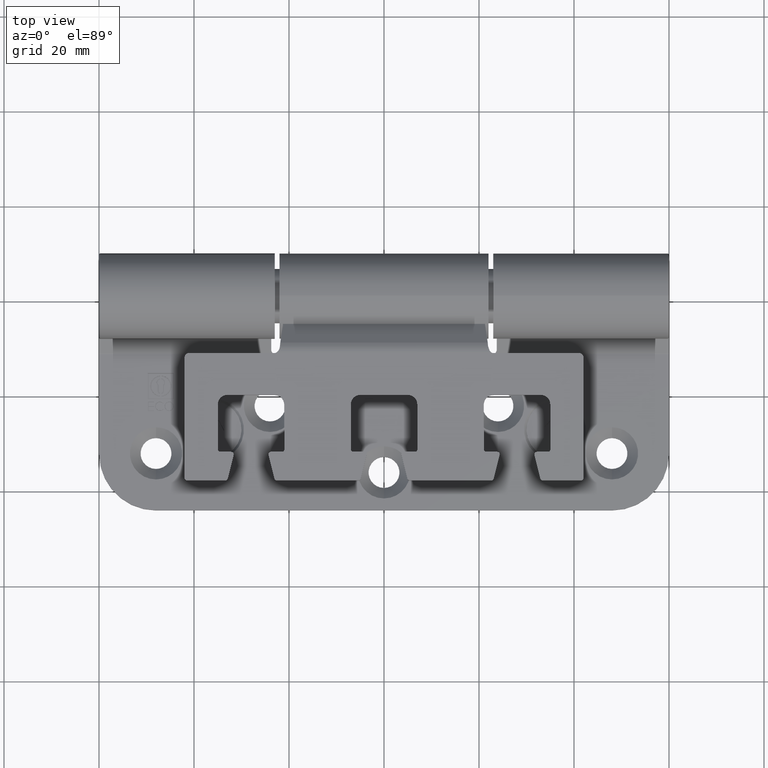
[diagram: clean part render]
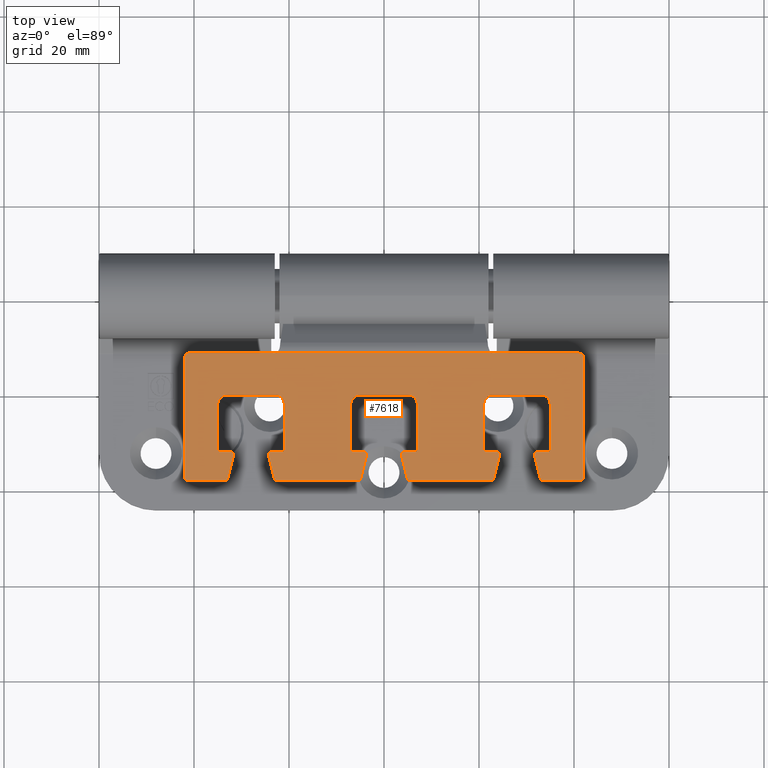
[diagram: same view with one face highlighted and labeled with its STEP entity id]
A machine part, top view. The second image highlights one B-rep face of the part: STEP entity #7618.
In plain terms, the highlighted planar face has unit normal (-0, 0, -1).
Its self-contained STEP definition (entity closure, byte-faithful):
#31 = EDGE_CURVE ( 'NONE', #11033, #685, #17393, .T. ) ;
#68 = VERTEX_POINT ( 'NONE', #16265 ) ;
#69 = VECTOR ( 'NONE', #8834, 1000.000000000000000 ) ;
#137 = AXIS2_PLACEMENT_3D ( 'NONE', #13610, #5369, #2589 ) ;
#197 = DIRECTION ( 'NONE',  ( 1.000000000000000000, 0.0000000000000000000, 1.026341648675405700E-048 ) ) ;
#222 = VERTEX_POINT ( 'NONE', #16482 ) ;
#299 = CARTESIAN_POINT ( 'NONE',  ( -33.49999999999999300, -10.99999999999999800, 32.14038820320222800 ) ) ;
#318 = CARTESIAN_POINT ( 'NONE',  ( -12.18030679136777500, -11.00000000000000200, -22.89199802843976900 ) ) ;
#364 = CARTESIAN_POINT ( 'NONE',  ( -38.99999999999993600, -11.00000000000000200, 21.00000000000000400 ) ) ;
#389 = VERTEX_POINT ( 'NONE', #2117 ) ;
#449 = DIRECTION ( 'NONE',  ( 0.0000000000000000000, 1.000000000000000000, 1.402666919856384600E-045 ) ) ;
#451 = CIRCLE ( 'NONE', #13173, 0.5000000000000004400 ) ;
#514 = EDGE_CURVE ( 'NONE', #11155, #8060, #1284, .T. ) ;
#575 = EDGE_CURVE ( 'NONE', #11556, #15273, #9215, .T. ) ;
#607 = VERTEX_POINT ( 'NONE', #2200 ) ;
#631 = ORIENTED_EDGE ( 'NONE', *, *, #16498, .T. ) ;
#669 = ORIENTED_EDGE ( 'NONE', *, *, #4151, .T. ) ;
#672 = ORIENTED_EDGE ( 'NONE', *, *, #15447, .T. ) ;
#676 = AXIS2_PLACEMENT_3D ( 'NONE', #14831, #16141, #17515 ) ;
#685 = VERTEX_POINT ( 'NONE', #1115 ) ;
#690 = CARTESIAN_POINT ( 'NONE',  ( -38.62126781251816300, -11.00000000000000200, 32.90531695312954200 ) ) ;
#731 = CIRCLE ( 'NONE', #11729, 0.5000000000000004400 ) ;
#748 = VERTEX_POINT ( 'NONE', #1055 ) ;
#792 = LINE ( 'NONE', #16885, #4840 ) ;
#797 = DIRECTION ( 'NONE',  ( 0.0000000000000000000, 0.0000000000000000000, 1.000000000000000000 ) ) ;
#841 = DIRECTION ( 'NONE',  ( 1.000000000000000000, 0.0000000000000000000, -6.938893903907232300E-016 ) ) ;
#843 = VERTEX_POINT ( 'NONE', #11394 ) ;
#852 = VERTEX_POINT ( 'NONE', #5742 ) ;
#859 = CARTESIAN_POINT ( 'NONE',  ( -38.50000000000000000, -11.00000000000000200, -22.60961179679778600 ) ) ;
#880 = DIRECTION ( 'NONE',  ( 0.0000000000000000000, 0.0000000000000000000, 1.000000000000000000 ) ) ;
#964 = CARTESIAN_POINT ( 'NONE',  ( -32.49999999999999300, -10.99999999999999800, 7.000000000000012400 ) ) ;
#989 = VERTEX_POINT ( 'NONE', #10793 ) ;
#1055 = CARTESIAN_POINT ( 'NONE',  ( -33.49999999999998600, -10.99999999999999800, 24.35961179679781800 ) ) ;
#1057 = DIRECTION ( 'NONE',  ( -0.0000000000000000000, -1.000000000000000000, -1.402666919856384600E-045 ) ) ;
#1090 = CARTESIAN_POINT ( 'NONE',  ( -32.99999999999999300, -11.00000000000000200, -32.14038820320217800 ) ) ;
#1092 = VERTEX_POINT ( 'NONE', #6815 ) ;
#1106 = ORIENTED_EDGE ( 'NONE', *, *, #3688, .T. ) ;
#1115 = CARTESIAN_POINT ( 'NONE',  ( -38.62126781251818400, -11.00000000000000200, -32.90531695312952100 ) ) ;
#1139 = CARTESIAN_POINT ( 'NONE',  ( -32.49999999999999300, -10.99999999999999800, -6.499999999999992000 ) ) ;
#1146 = VERTEX_POINT ( 'NONE', #15066 ) ;
#1151 = ORIENTED_EDGE ( 'NONE', *, *, #12716, .T. ) ;
#1167 = LINE ( 'NONE', #5592, #11238 ) ;
#1173 = DIRECTION ( 'NONE',  ( 0.0000000000000000000, 0.0000000000000000000, 1.000000000000000000 ) ) ;
#1209 = CIRCLE ( 'NONE', #10052, 1.999999999999994900 ) ;
#1284 = CIRCLE ( 'NONE', #3656, 0.5000000000000004400 ) ;
#1344 = ORIENTED_EDGE ( 'NONE', *, *, #2057, .T. ) ;
#1347 = DIRECTION ( 'NONE',  ( 0.0000000000000000000, 0.0000000000000000000, 1.000000000000000000 ) ) ;
#1350 = CARTESIAN_POINT ( 'NONE',  ( -32.49999999999999300, -10.99999999999999800, 34.50000000000000700 ) ) ;
#1354 = VERTEX_POINT ( 'NONE', #17010 ) ;
#1387 = AXIS2_PLACEMENT_3D ( 'NONE', #859, #13136, #797 ) ;
#1424 = CARTESIAN_POINT ( 'NONE',  ( -33.49999999999999300, -10.99999999999999800, -3.640388203202183700 ) ) ;
#1438 = EDGE_CURVE ( 'NONE', #3187, #989, #6748, .T. ) ;
#1455 = DIRECTION ( 'NONE',  ( 0.0000000000000000000, 0.0000000000000000000, 1.000000000000000000 ) ) ;
#1536 = ORIENTED_EDGE ( 'NONE', *, *, #12592, .T. ) ;
#1564 = DIRECTION ( 'NONE',  ( 0.0000000000000000000, 1.000000000000000000, 1.402666919856384600E-045 ) ) ;
#1617 = DIRECTION ( 'NONE',  ( 1.026341648675172500E-048, 1.401298464324817100E-045, 1.000000000000000000 ) ) ;
#1701 = DIRECTION ( 'NONE',  ( -1.387778780781444400E-014, 0.0000000000000000000, 1.000000000000000000 ) ) ;
#1708 = ORIENTED_EDGE ( 'NONE', *, *, #11572, .T. ) ;
#1768 = AXIS2_PLACEMENT_3D ( 'NONE', #16139, #13423, #17630 ) ;
#1867 = ORIENTED_EDGE ( 'NONE', *, *, #3585, .T. ) ;
#1875 = ORIENTED_EDGE ( 'NONE', *, *, #13863, .T. ) ;
#1895 = EDGE_CURVE ( 'NONE', #6896, #6159, #10819, .T. ) ;
#1921 = VECTOR ( 'NONE', #10686, 1000.000000000000000 ) ;
#1942 = ORIENTED_EDGE ( 'NONE', *, *, #16738, .T. ) ;
#1945 = EDGE_CURVE ( 'NONE', #5531, #17260, #16196, .T. ) ;
#1953 = CARTESIAN_POINT ( 'NONE',  ( -33.49999999999999300, -10.99999999999999800, -32.14038820320218500 ) ) ;
#1999 = AXIS2_PLACEMENT_3D ( 'NONE', #14830, #9522, #6642 ) ;
#2018 = VECTOR ( 'NONE', #13686, 1000.000000000000000 ) ;
#2057 = EDGE_CURVE ( 'NONE', #11675, #10034, #731, .T. ) ;
#2071 = VERTEX_POINT ( 'NONE', #16311 ) ;
#2117 = CARTESIAN_POINT ( 'NONE',  ( -12.18030679136776200, -11.00000000000000000, 22.89199802964732600 ) ) ;
#2141 = EDGE_CURVE ( 'NONE', #11938, #9015, #1167, .T. ) ;
#2200 = CARTESIAN_POINT ( 'NONE',  ( -39.00000000000000000, -11.00000000000000200, -5.390388203202159700 ) ) ;
#2223 = ORIENTED_EDGE ( 'NONE', *, *, #8683, .T. ) ;
#2248 = CIRCLE ( 'NONE', #5341, 1.999999999999994900 ) ;
#2259 = VERTEX_POINT ( 'NONE', #4453 ) ;
#2328 = CARTESIAN_POINT ( 'NONE',  ( -39.00000000000000000, -11.00000000000000200, -41.49999999999997200 ) ) ;
#2414 = VERTEX_POINT ( 'NONE', #15165 ) ;
#2464 = VERTEX_POINT ( 'NONE', #6797 ) ;
#2469 = DIRECTION ( 'NONE',  ( -1.026341648675172300E-048, -1.401298464324817400E-045, -1.000000000000000000 ) ) ;
#2479 = CIRCLE ( 'NONE', #14993, 0.5000000000000004400 ) ;
#2505 = VERTEX_POINT ( 'NONE', #17779 ) ;
#2527 = CARTESIAN_POINT ( 'NONE',  ( -22.99999999999998200, -11.00000000000000200, 33.00000000000001400 ) ) ;
#2551 = DIRECTION ( 'NONE',  ( -1.000000000000000000, 0.0000000000000000000, -6.938893903907228400E-016 ) ) ;
#2587 = EDGE_CURVE ( 'NONE', #14828, #852, #3304, .T. ) ;
#2589 = DIRECTION ( 'NONE',  ( 0.0000000000000000000, 0.0000000000000000000, 1.000000000000000000 ) ) ;
#2600 = EDGE_CURVE ( 'NONE', #8045, #16132, #16806, .T. ) ;
#2609 = DIRECTION ( 'NONE',  ( -1.026341648675172300E-048, -1.401298464324817400E-045, -1.000000000000000000 ) ) ;
#2638 = AXIS2_PLACEMENT_3D ( 'NONE', #12817, #10310, #11682 ) ;
#2702 = DIRECTION ( 'NONE',  ( -0.0000000000000000000, -1.000000000000000000, -1.402666919856384600E-045 ) ) ;
#2723 = CARTESIAN_POINT ( 'NONE',  ( -20.99999999999998600, -10.99999999999999800, 23.00000000000000700 ) ) ;
#2745 = CARTESIAN_POINT ( 'NONE',  ( -33.49999999999998600, -10.99999999999999800, 23.85961179679781800 ) ) ;
#2783 = CIRCLE ( 'NONE', #15982, 0.5000000000000004400 ) ;
#2786 = ORIENTED_EDGE ( 'NONE', *, *, #14829, .T. ) ;
#2823 = DIRECTION ( 'NONE',  ( 0.0000000000000000000, 0.0000000000000000000, 1.000000000000000000 ) ) ;
#2852 = CARTESIAN_POINT ( 'NONE',  ( -20.99999999999998900, -10.99999999999999800, 42.00000000000000000 ) ) ;
#2886 = VERTEX_POINT ( 'NONE', #10752 ) ;
#2943 = VERTEX_POINT ( 'NONE', #3964 ) ;
#2951 = ORIENTED_EDGE ( 'NONE', *, *, #12258, .T. ) ;
#2969 = CARTESIAN_POINT ( 'NONE',  ( -32.99999999999999300, -11.00000000000000200, 34.50000000000000000 ) ) ;
#3013 = VERTEX_POINT ( 'NONE', #8165 ) ;
#3044 = CARTESIAN_POINT ( 'NONE',  ( -33.62126781251817700, -10.99999999999999800, -3.655316953129518400 ) ) ;
#3059 = VECTOR ( 'NONE', #2551, 1000.000000000000000 ) ;
#3065 = CIRCLE ( 'NONE', #3868, 0.5000000000000004400 ) ;
#3087 = DIRECTION ( 'NONE',  ( 0.0000000000000000000, 0.0000000000000000000, 1.000000000000000000 ) ) ;
#3122 = ORIENTED_EDGE ( 'NONE', *, *, #13757, .T. ) ;
#3145 = EDGE_CURVE ( 'NONE', #17260, #11556, #12137, .T. ) ;
#3187 = VERTEX_POINT ( 'NONE', #4132 ) ;
#3250 = EDGE_CURVE ( 'NONE', #16669, #389, #8907, .T. ) ;
#3253 = DIRECTION ( 'NONE',  ( 0.0000000000000000000, 1.000000000000000000, 1.402666919856384600E-045 ) ) ;
#3269 = EDGE_CURVE ( 'NONE', #3013, #6666, #8274, .T. ) ;
#3296 = EDGE_CURVE ( 'NONE', #9015, #6263, #4599, .T. ) ;
#3304 = LINE ( 'NONE', #17053, #13829 ) ;
#3306 = ORIENTED_EDGE ( 'NONE', *, *, #2587, .T. ) ;
#3373 = ORIENTED_EDGE ( 'NONE', *, *, #3269, .T. ) ;
#3380 = CARTESIAN_POINT ( 'NONE',  ( -33.49999999999999300, -10.99999999999999800, -4.140388203202184600 ) ) ;
#3505 = CARTESIAN_POINT ( 'NONE',  ( -22.99999999999998600, -11.00000000000000200, -4.999999999999992900 ) ) ;
#3561 = AXIS2_PLACEMENT_3D ( 'NONE', #10899, #2702, #12276 ) ;
#3585 = EDGE_CURVE ( 'NONE', #2259, #11990, #17716, .T. ) ;
#3605 = EDGE_CURVE ( 'NONE', #6237, #1092, #17051, .T. ) ;
#3623 = CARTESIAN_POINT ( 'NONE',  ( -32.99999999999999300, -11.00000000000000200, -23.85961179679777500 ) ) ;
#3640 = LINE ( 'NONE', #10083, #9868 ) ;
#3656 = AXIS2_PLACEMENT_3D ( 'NONE', #8959, #6071, #15691 ) ;
#3688 = EDGE_CURVE ( 'NONE', #607, #222, #17279, .T. ) ;
#3868 = AXIS2_PLACEMENT_3D ( 'NONE', #8718, #9975, #6000 ) ;
#3964 = CARTESIAN_POINT ( 'NONE',  ( -13.18030679136777600, -11.00000000000000200, 42.00000000000000000 ) ) ;
#3993 = DIRECTION ( 'NONE',  ( 0.0000000000000000000, 1.000000000000000000, 1.402666919856384600E-045 ) ) ;
#4010 = DIRECTION ( 'NONE',  ( 0.0000000000000000000, 0.0000000000000000000, 1.000000000000000000 ) ) ;
#4016 = ORIENTED_EDGE ( 'NONE', *, *, #13015, .T. ) ;
#4031 = DIRECTION ( 'NONE',  ( 0.0000000000000000000, 0.0000000000000000000, 1.000000000000000000 ) ) ;
#4069 = CARTESIAN_POINT ( 'NONE',  ( -32.99999999999999300, -11.00000000000000200, 42.00000000000000000 ) ) ;
#4079 = AXIS2_PLACEMENT_3D ( 'NONE', #3505, #11728, #880 ) ;
#4132 = CARTESIAN_POINT ( 'NONE',  ( -33.62126781251817000, -10.99999999999999800, 24.34468304687048200 ) ) ;
#4151 = EDGE_CURVE ( 'NONE', #1146, #6896, #4566, .T. ) ;
#4162 = DIRECTION ( 'NONE',  ( 0.0000000000000000000, 0.0000000000000000000, 1.000000000000000000 ) ) ;
#4245 = DIRECTION ( 'NONE',  ( -1.026341648675172300E-048, -1.401298464324817400E-045, -1.000000000000000000 ) ) ;
#4402 = ORIENTED_EDGE ( 'NONE', *, *, #8576, .T. ) ;
#4453 = CARTESIAN_POINT ( 'NONE',  ( -13.18030679136777600, -11.00000000000000200, -42.00000000000000000 ) ) ;
#4469 = VECTOR ( 'NONE', #11664, 999.9999999999998900 ) ;
#4472 = DIRECTION ( 'NONE',  ( -0.0000000000000000000, -1.000000000000000000, -1.402666919856384600E-045 ) ) ;
#4527 = VECTOR ( 'NONE', #2609, 1000.000000000000000 ) ;
#4566 = CIRCLE ( 'NONE', #14877, 0.5000000000000004400 ) ;
#4599 = CIRCLE ( 'NONE', #6332, 0.5000000000000004400 ) ;
#4631 = EDGE_CURVE ( 'NONE', #6133, #11938, #10493, .T. ) ;
#4670 = AXIS2_PLACEMENT_3D ( 'NONE', #7440, #7559, #14252 ) ;
#4762 = LINE ( 'NONE', #17490, #16183 ) ;
#4840 = VECTOR ( 'NONE', #8671, 1000.000000000000000 ) ;
#4846 = ORIENTED_EDGE ( 'NONE', *, *, #1945, .T. ) ;
#4966 = DIRECTION ( 'NONE',  ( 1.026341648675172500E-048, 1.401298464324817100E-045, 1.000000000000000000 ) ) ;
#5083 = DIRECTION ( 'NONE',  ( 0.9701425001453322100, 0.0000000000000000000, -0.2425356250363319400 ) ) ;
#5132 = CARTESIAN_POINT ( 'NONE',  ( -39.00000000000000000, -11.00000000000000200, 42.00000000000000000 ) ) ;
#5203 = CARTESIAN_POINT ( 'NONE',  ( -21.35294117647066200, -10.99999999999999800, -28.58823529411765900 ) ) ;
#5205 = ORIENTED_EDGE ( 'NONE', *, *, #13879, .T. ) ;
#5224 = VECTOR ( 'NONE', #16042, 1000.000000000000000 ) ;
#5335 = EDGE_CURVE ( 'NONE', #8060, #10018, #11867, .T. ) ;
#5339 = CIRCLE ( 'NONE', #6407, 0.5000000000000004400 ) ;
#5341 = AXIS2_PLACEMENT_3D ( 'NONE', #14630, #7695, #17306 ) ;
#5369 = DIRECTION ( 'NONE',  ( -0.0000000000000000000, -1.000000000000000000, -1.402666919856384600E-045 ) ) ;
#5386 = AXIS2_PLACEMENT_3D ( 'NONE', #2527, #12089, #6636 ) ;
#5494 = CARTESIAN_POINT ( 'NONE',  ( -38.50000000000000000, -11.00000000000000200, 5.390388203202212100 ) ) ;
#5522 = LINE ( 'NONE', #9302, #1921 ) ;
#5531 = VERTEX_POINT ( 'NONE', #5737 ) ;
#5584 = CARTESIAN_POINT ( 'NONE',  ( -32.99999999999999300, -11.00000000000000200, 42.00000000000000000 ) ) ;
#5592 = CARTESIAN_POINT ( 'NONE',  ( -54.29411764705875500, -11.00000000000000200, 36.82352941176468200 ) ) ;
#5737 = CARTESIAN_POINT ( 'NONE',  ( -39.00000000000000000, -11.00000000000000200, 22.60961179679782900 ) ) ;
#5742 = CARTESIAN_POINT ( 'NONE',  ( -32.99999999999998600, -11.00000000000000200, 23.85961179679782500 ) ) ;
#5750 = ORIENTED_EDGE ( 'NONE', *, *, #3296, .T. ) ;
#5828 = LINE ( 'NONE', #15022, #3059 ) ;
#5898 = DIRECTION ( 'NONE',  ( -0.0000000000000000000, -1.000000000000000000, -1.402666919856384600E-045 ) ) ;
#5931 = ORIENTED_EDGE ( 'NONE', *, *, #9443, .T. ) ;
#6000 = DIRECTION ( 'NONE',  ( 0.0000000000000000000, 0.0000000000000000000, 1.000000000000000000 ) ) ;
#6010 = EDGE_CURVE ( 'NONE', #10139, #3013, #1209, .T. ) ;
#6056 = CARTESIAN_POINT ( 'NONE',  ( -38.50000000000000000, -11.00000000000000200, -41.50000000000000000 ) ) ;
#6071 = DIRECTION ( 'NONE',  ( 0.0000000000000000000, 1.000000000000000000, 1.402666919856384600E-045 ) ) ;
#6116 = CARTESIAN_POINT ( 'NONE',  ( -39.00000000000000000, -11.00000000000000200, 33.39038820320222800 ) ) ;
#6133 = VERTEX_POINT ( 'NONE', #6116 ) ;
#6159 = VERTEX_POINT ( 'NONE', #11811 ) ;
#6161 = CIRCLE ( 'NONE', #5386, 1.999999999999994900 ) ;
#6237 = VERTEX_POINT ( 'NONE', #14732 ) ;
#6261 = CIRCLE ( 'NONE', #2638, 0.5000000000000004400 ) ;
#6263 = VERTEX_POINT ( 'NONE', #14788 ) ;
#6272 = EDGE_CURVE ( 'NONE', #17702, #10139, #5522, .T. ) ;
#6295 = DIRECTION ( 'NONE',  ( -0.0000000000000000000, -1.000000000000000000, -1.402666919856384600E-045 ) ) ;
#6332 = AXIS2_PLACEMENT_3D ( 'NONE', #299, #4472, #1701 ) ;
#6391 = CARTESIAN_POINT ( 'NONE',  ( -38.50000000000000000, -11.00000000000000200, 22.60961179679782200 ) ) ;
#6407 = AXIS2_PLACEMENT_3D ( 'NONE', #16518, #8358, #4162 ) ;
#6433 = AXIS2_PLACEMENT_3D ( 'NONE', #2745, #6906, #1347 ) ;
#6624 = ORIENTED_EDGE ( 'NONE', *, *, #17545, .T. ) ;
#6635 = VECTOR ( 'NONE', #197, 1000.000000000000000 ) ;
#6636 = DIRECTION ( 'NONE',  ( 0.0000000000000000000, 0.0000000000000000000, 1.000000000000000000 ) ) ;
#6642 = DIRECTION ( 'NONE',  ( 0.0000000000000000000, 0.0000000000000000000, 1.000000000000000000 ) ) ;
#6666 = VERTEX_POINT ( 'NONE', #14824 ) ;
#6735 = CARTESIAN_POINT ( 'NONE',  ( -22.99999999999998600, -11.00000000000000200, 7.000000000000010700 ) ) ;
#6748 = LINE ( 'NONE', #11672, #10178 ) ;
#6750 = EDGE_LOOP ( 'NONE', ( #16895, #13511, #16587, #14756, #7978, #14455, #12188, #5750, #1942, #1151, #16467, #5205, #8322, #8292, #3373, #13952, #3306, #2786, #631, #13512, #13436, #4846, #13550, #14292, #10158, #2951, #2223, #7891, #4402, #7179, #15433, #1536, #1344, #13504, #14245, #8800, #672, #9122, #1106, #17499, #7309, #1708, #10641, #669, #14475, #11777, #8540, #11235, #8909, #10901, #10378, #3122, #4016, #7078, #1875, #6624, #14816, #5931, #1867, #13309, #9590 ) ) ;
#6797 = CARTESIAN_POINT ( 'NONE',  ( -33.62126781251815500, -10.99999999999999800, -24.34468304687045000 ) ) ;
#6802 = DIRECTION ( 'NONE',  ( -1.000000000000000000, 0.0000000000000000000, -6.938893903907228400E-016 ) ) ;
#6815 = CARTESIAN_POINT ( 'NONE',  ( -39.00000000000000000, -11.00000000000000200, 41.50000000000000000 ) ) ;
#6827 = CARTESIAN_POINT ( 'NONE',  ( -21.35294117647066200, -10.99999999999999800, -0.5882352941176567400 ) ) ;
#6865 = CIRCLE ( 'NONE', #676, 0.5000000000000004400 ) ;
#6896 = VERTEX_POINT ( 'NONE', #12558 ) ;
#6906 = DIRECTION ( 'NONE',  ( -0.0000000000000000000, -1.000000000000000000, -1.402666919856384600E-045 ) ) ;
#6932 = DIRECTION ( 'NONE',  ( 0.9701425001453322100, 0.0000000000000000000, -0.2425356250363319400 ) ) ;
#6942 = CARTESIAN_POINT ( 'NONE',  ( -32.50000000000000000, -10.99999999999999800, -34.99999999999999300 ) ) ;
#7001 = EDGE_CURVE ( 'NONE', #6159, #68, #2248, .T. ) ;
#7063 = VECTOR ( 'NONE', #15515, 1000.000000000000000 ) ;
#7073 = EDGE_CURVE ( 'NONE', #10021, #843, #10597, .T. ) ;
#7078 = ORIENTED_EDGE ( 'NONE', *, *, #31, .T. ) ;
#7113 = FACE_OUTER_BOUND ( 'NONE', #6750, .T. ) ;
#7179 = ORIENTED_EDGE ( 'NONE', *, *, #16612, .T. ) ;
#7309 = ORIENTED_EDGE ( 'NONE', *, *, #13301, .T. ) ;
#7393 = CARTESIAN_POINT ( 'NONE',  ( -32.50000000000000000, -10.99999999999999800, -21.49999999999998900 ) ) ;
#7410 = DIRECTION ( 'NONE',  ( -0.9701425001453322100, 3.944304526105058600E-031, -0.2425356250363319400 ) ) ;
#7440 = CARTESIAN_POINT ( 'NONE',  ( -13.18030679136777600, -11.00000000000000200, 41.00000000000000000 ) ) ;
#7534 = CARTESIAN_POINT ( 'NONE',  ( -33.49999999999999300, -10.99999999999999800, -32.14038820320218500 ) ) ;
#7559 = DIRECTION ( 'NONE',  ( -0.0000000000000000000, -1.000000000000000000, -1.402666919856384600E-045 ) ) ;
#7591 = VECTOR ( 'NONE', #841, 1000.000000000000000 ) ;
#7618 = ADVANCED_FACE ( 'NONE', ( #7113 ), #10632, .F. ) ;
#7692 = LINE ( 'NONE', #12441, #10927 ) ;
#7695 = DIRECTION ( 'NONE',  ( 0.0000000000000000000, 1.000000000000000000, 1.402666919856384600E-045 ) ) ;
#7733 = DIRECTION ( 'NONE',  ( -2.877826455228648000E-093, 1.000000000000000000, -1.401298464324817100E-045 ) ) ;
#7789 = LINE ( 'NONE', #17058, #69 ) ;
#7812 = CARTESIAN_POINT ( 'NONE',  ( -33.62126781251814800, -10.99999999999999800, 31.65531695312955000 ) ) ;
#7864 = DIRECTION ( 'NONE',  ( -1.026341648675172300E-048, -1.401298464324817400E-045, -1.000000000000000000 ) ) ;
#7891 = ORIENTED_EDGE ( 'NONE', *, *, #14645, .T. ) ;
#7978 = ORIENTED_EDGE ( 'NONE', *, *, #11989, .T. ) ;
#8001 = DIRECTION ( 'NONE',  ( 0.0000000000000000000, 1.000000000000000000, 1.402666919856384600E-045 ) ) ;
#8025 = LINE ( 'NONE', #13568, #5224 ) ;
#8036 = LINE ( 'NONE', #15004, #12740 ) ;
#8041 = DIRECTION ( 'NONE',  ( -0.9701425001453322100, 3.944304526105058600E-031, -0.2425356250363319400 ) ) ;
#8045 = VERTEX_POINT ( 'NONE', #13855 ) ;
#8059 = EDGE_CURVE ( 'NONE', #389, #16904, #15682, .T. ) ;
#8060 = VERTEX_POINT ( 'NONE', #13917 ) ;
#8165 = CARTESIAN_POINT ( 'NONE',  ( -22.99999999999998200, -11.00000000000000200, 21.00000000000001100 ) ) ;
#8235 = AXIS2_PLACEMENT_3D ( 'NONE', #13626, #1564, #2823 ) ;
#8274 = LINE ( 'NONE', #364, #9567 ) ;
#8292 = ORIENTED_EDGE ( 'NONE', *, *, #6010, .T. ) ;
#8322 = ORIENTED_EDGE ( 'NONE', *, *, #6272, .T. ) ;
#8358 = DIRECTION ( 'NONE',  ( 0.0000000000000000000, 1.000000000000000000, 1.402666919856384600E-045 ) ) ;
#8409 = CARTESIAN_POINT ( 'NONE',  ( -39.00000000000000000, -11.00000000000000200, 42.00000000000000000 ) ) ;
#8513 = CARTESIAN_POINT ( 'NONE',  ( -20.99999999999998200, -10.99999999999999800, 33.00000000000001400 ) ) ;
#8540 = ORIENTED_EDGE ( 'NONE', *, *, #8630, .T. ) ;
#8576 = EDGE_CURVE ( 'NONE', #16852, #2886, #14559, .T. ) ;
#8630 = EDGE_CURVE ( 'NONE', #68, #9808, #17457, .T. ) ;
#8671 = DIRECTION ( 'NONE',  ( 1.000000000000000000, 0.0000000000000000000, -6.938893903907232300E-016 ) ) ;
#8679 = VERTEX_POINT ( 'NONE', #2969 ) ;
#8683 = EDGE_CURVE ( 'NONE', #9742, #11500, #3065, .T. ) ;
#8718 = CARTESIAN_POINT ( 'NONE',  ( -32.50000000000000000, -10.99999999999999800, 6.500000000000011500 ) ) ;
#8777 = DIRECTION ( 'NONE',  ( 0.0000000000000000000, 0.0000000000000000000, 1.000000000000000000 ) ) ;
#8800 = ORIENTED_EDGE ( 'NONE', *, *, #17088, .T. ) ;
#8834 = DIRECTION ( 'NONE',  ( -1.026341648675172500E-048, -1.401298464324817100E-045, -1.000000000000000000 ) ) ;
#8907 = LINE ( 'NONE', #14109, #12551 ) ;
#8909 = ORIENTED_EDGE ( 'NONE', *, *, #17543, .T. ) ;
#8959 = CARTESIAN_POINT ( 'NONE',  ( -32.49999999999999300, -10.99999999999999800, -34.49999999999999300 ) ) ;
#8997 = EDGE_CURVE ( 'NONE', #17452, #607, #451, .T. ) ;
#9015 = VERTEX_POINT ( 'NONE', #7812 ) ;
#9061 = DIRECTION ( 'NONE',  ( 0.0000000000000000000, 0.0000000000000000000, 1.000000000000000000 ) ) ;
#9122 = ORIENTED_EDGE ( 'NONE', *, *, #8997, .T. ) ;
#9130 = CARTESIAN_POINT ( 'NONE',  ( -38.62126781251817000, -11.00000000000000200, -4.905316953129514000 ) ) ;
#9215 = LINE ( 'NONE', #10168, #4469 ) ;
#9223 = VECTOR ( 'NONE', #7864, 1000.000000000000000 ) ;
#9242 = VECTOR ( 'NONE', #12505, 1000.000000000000000 ) ;
#9298 = CARTESIAN_POINT ( 'NONE',  ( -39.00000000000000000, -11.00000000000000200, 5.390388203202229000 ) ) ;
#9302 = CARTESIAN_POINT ( 'NONE',  ( -20.99999999999998200, -10.99999999999999800, 98.00000000000000000 ) ) ;
#9359 = DIRECTION ( 'NONE',  ( 0.0000000000000000000, 0.0000000000000000000, 1.000000000000000000 ) ) ;
#9380 = EDGE_CURVE ( 'NONE', #10082, #1354, #16407, .T. ) ;
#9393 = DIRECTION ( 'NONE',  ( 0.0000000000000000000, 0.0000000000000000000, 1.000000000000000000 ) ) ;
#9421 = CARTESIAN_POINT ( 'NONE',  ( -38.62126781251817000, -11.00000000000000200, 4.905316953129546000 ) ) ;
#9439 = AXIS2_PLACEMENT_3D ( 'NONE', #7534, #15594, #17019 ) ;
#9443 = EDGE_CURVE ( 'NONE', #10834, #2259, #8025, .T. ) ;
#9509 = CARTESIAN_POINT ( 'NONE',  ( -22.99999999999998600, -11.00000000000000200, 5.000000000000016000 ) ) ;
#9522 = DIRECTION ( 'NONE',  ( -0.0000000000000000000, -1.000000000000000000, -1.402666919856384600E-045 ) ) ;
#9567 = VECTOR ( 'NONE', #13877, 1000.000000000000000 ) ;
#9579 = DIRECTION ( 'NONE',  ( -1.026341648675172300E-048, -1.401298464324817400E-045, -1.000000000000000000 ) ) ;
#9590 = ORIENTED_EDGE ( 'NONE', *, *, #8059, .F. ) ;
#9624 = EDGE_CURVE ( 'NONE', #14764, #10834, #16428, .T. ) ;
#9654 = DIRECTION ( 'NONE',  ( -0.9701425001453322100, 3.944304526105058600E-031, -0.2425356250363319400 ) ) ;
#9669 = LINE ( 'NONE', #13778, #11164 ) ;
#9738 = AXIS2_PLACEMENT_3D ( 'NONE', #17403, #7733, #4966 ) ;
#9742 = VERTEX_POINT ( 'NONE', #13146 ) ;
#9787 = DIRECTION ( 'NONE',  ( -0.0000000000000000000, -1.000000000000000000, -1.402666919856384600E-045 ) ) ;
#9808 = VERTEX_POINT ( 'NONE', #10346 ) ;
#9868 = VECTOR ( 'NONE', #10026, 1000.000000000000000 ) ;
#9975 = DIRECTION ( 'NONE',  ( 0.0000000000000000000, 1.000000000000000000, 1.402666919856384600E-045 ) ) ;
#10018 = VERTEX_POINT ( 'NONE', #1090 ) ;
#10021 = VERTEX_POINT ( 'NONE', #13556 ) ;
#10026 = DIRECTION ( 'NONE',  ( 1.026341648675172500E-048, 1.401298464324817100E-045, 1.000000000000000000 ) ) ;
#10034 = VERTEX_POINT ( 'NONE', #14730 ) ;
#10052 = AXIS2_PLACEMENT_3D ( 'NONE', #11454, #3253, #11347 ) ;
#10082 = VERTEX_POINT ( 'NONE', #16092 ) ;
#10083 = CARTESIAN_POINT ( 'NONE',  ( -33.00000000000000000, -11.00000000000000200, 70.00000000000000000 ) ) ;
#10086 = CARTESIAN_POINT ( 'NONE',  ( -39.00000000000003600, -11.00000000000000200, 35.00000000000001400 ) ) ;
#10139 = VERTEX_POINT ( 'NONE', #2723 ) ;
#10154 = EDGE_CURVE ( 'NONE', #9808, #2071, #10922, .T. ) ;
#10158 = ORIENTED_EDGE ( 'NONE', *, *, #10444, .T. ) ;
#10168 = CARTESIAN_POINT ( 'NONE',  ( -54.29411764705876900, -11.00000000000000200, 8.823529411764676300 ) ) ;
#10178 = VECTOR ( 'NONE', #7410, 999.9999999999998900 ) ;
#10310 = DIRECTION ( 'NONE',  ( -0.0000000000000000000, -1.000000000000000000, -1.402666919856384600E-045 ) ) ;
#10346 = CARTESIAN_POINT ( 'NONE',  ( -20.99999999999999300, -10.99999999999999800, -32.99999999999999300 ) ) ;
#10378 = ORIENTED_EDGE ( 'NONE', *, *, #5335, .T. ) ;
#10444 = EDGE_CURVE ( 'NONE', #15273, #2414, #6261, .T. ) ;
#10493 = CIRCLE ( 'NONE', #17273, 0.5000000000000004400 ) ;
#10563 = CARTESIAN_POINT ( 'NONE',  ( -54.29411764705876200, -11.00000000000000200, -19.17647058823532200 ) ) ;
#10597 = CIRCLE ( 'NONE', #4079, 1.999999999999996700 ) ;
#10632 = PLANE ( 'NONE',  #9738 ) ;
#10641 = ORIENTED_EDGE ( 'NONE', *, *, #12682, .T. ) ;
#10686 = DIRECTION ( 'NONE',  ( -1.026341648675172500E-048, -1.401298464324817100E-045, -1.000000000000000000 ) ) ;
#10729 = CARTESIAN_POINT ( 'NONE',  ( -39.00000000000000000, -11.00000000000000200, -33.39038820320216400 ) ) ;
#10752 = CARTESIAN_POINT ( 'NONE',  ( -20.99999999999998600, -10.99999999999999800, 5.000000000000016000 ) ) ;
#10793 = CARTESIAN_POINT ( 'NONE',  ( -38.62126781251816300, -11.00000000000000200, 23.09468304687048600 ) ) ;
#10819 = LINE ( 'NONE', #13426, #7591 ) ;
#10834 = VERTEX_POINT ( 'NONE', #11008 ) ;
#10899 = CARTESIAN_POINT ( 'NONE',  ( -38.50000000000000000, -11.00000000000000200, -33.39038820320219300 ) ) ;
#10901 = ORIENTED_EDGE ( 'NONE', *, *, #514, .T. ) ;
#10922 = CIRCLE ( 'NONE', #8235, 1.999999999999994900 ) ;
#10927 = VECTOR ( 'NONE', #6802, 1000.000000000000000 ) ;
#11008 = CARTESIAN_POINT ( 'NONE',  ( -38.50000000000000000, -11.00000000000000200, -42.00000000000000000 ) ) ;
#11033 = VERTEX_POINT ( 'NONE', #13324 ) ;
#11155 = VERTEX_POINT ( 'NONE', #6942 ) ;
#11164 = VECTOR ( 'NONE', #1617, 1000.000000000000000 ) ;
#11235 = ORIENTED_EDGE ( 'NONE', *, *, #10154, .T. ) ;
#11238 = VECTOR ( 'NONE', #6932, 999.9999999999998900 ) ;
#11347 = DIRECTION ( 'NONE',  ( 0.0000000000000000000, 0.0000000000000000000, 1.000000000000000000 ) ) ;
#11357 = CIRCLE ( 'NONE', #15067, 0.5000000000000004400 ) ;
#11394 = CARTESIAN_POINT ( 'NONE',  ( -22.99999999999998600, -11.00000000000000200, -6.999999999999987600 ) ) ;
#11413 = DIRECTION ( 'NONE',  ( 0.0000000000000000000, 0.0000000000000000000, 1.000000000000000000 ) ) ;
#11415 = DIRECTION ( 'NONE',  ( -0.0000000000000000000, -1.000000000000000000, -1.402666919856384600E-045 ) ) ;
#11453 = VECTOR ( 'NONE', #16983, 1000.000000000000000 ) ;
#11454 = CARTESIAN_POINT ( 'NONE',  ( -22.99999999999998200, -11.00000000000000200, 23.00000000000000700 ) ) ;
#11475 = CARTESIAN_POINT ( 'NONE',  ( -12.18030679136777500, -11.00000000000000200, 41.00000000000000000 ) ) ;
#11500 = VERTEX_POINT ( 'NONE', #964 ) ;
#11524 = DIRECTION ( 'NONE',  ( -0.0000000000000000000, -1.000000000000000000, -1.402666919856384600E-045 ) ) ;
#11556 = VERTEX_POINT ( 'NONE', #9421 ) ;
#11572 = EDGE_CURVE ( 'NONE', #2464, #14800, #6865, .T. ) ;
#11664 = DIRECTION ( 'NONE',  ( 0.9701425001453322100, 0.0000000000000000000, -0.2425356250363319400 ) ) ;
#11672 = CARTESIAN_POINT ( 'NONE',  ( -21.35294117647065400, -10.99999999999999800, 27.41176470588234100 ) ) ;
#11675 = VERTEX_POINT ( 'NONE', #12337 ) ;
#11682 = DIRECTION ( 'NONE',  ( -1.387778780781444400E-014, 0.0000000000000000000, 1.000000000000000000 ) ) ;
#11728 = DIRECTION ( 'NONE',  ( 0.0000000000000000000, 1.000000000000000000, 1.402666919856384600E-045 ) ) ;
#11729 = AXIS2_PLACEMENT_3D ( 'NONE', #1139, #3993, #9359 ) ;
#11737 = VERTEX_POINT ( 'NONE', #3044 ) ;
#11777 = ORIENTED_EDGE ( 'NONE', *, *, #7001, .T. ) ;
#11803 = EDGE_CURVE ( 'NONE', #10034, #8045, #9669, .T. ) ;
#11811 = CARTESIAN_POINT ( 'NONE',  ( -22.99999999999998900, -11.00000000000000200, -20.99999999999998900 ) ) ;
#11867 = LINE ( 'NONE', #4069, #2018 ) ;
#11938 = VERTEX_POINT ( 'NONE', #690 ) ;
#11944 = CIRCLE ( 'NONE', #1387, 0.5000000000000004400 ) ;
#11948 = CARTESIAN_POINT ( 'NONE',  ( -12.18030679136777500, -11.00000000000000200, -40.99999999999997200 ) ) ;
#11989 = EDGE_CURVE ( 'NONE', #1092, #6133, #14613, .T. ) ;
#11990 = VERTEX_POINT ( 'NONE', #11948 ) ;
#12013 = CARTESIAN_POINT ( 'NONE',  ( -39.00000000000000000, -11.00000000000000200, 42.00000000000000000 ) ) ;
#12089 = DIRECTION ( 'NONE',  ( 0.0000000000000000000, 1.000000000000000000, 1.402666919856384600E-045 ) ) ;
#12137 = CIRCLE ( 'NONE', #14166, 0.5000000000000004400 ) ;
#12165 = DIRECTION ( 'NONE',  ( -0.0000000000000000000, -1.000000000000000000, -1.402666919856384600E-045 ) ) ;
#12188 = ORIENTED_EDGE ( 'NONE', *, *, #2141, .T. ) ;
#12200 = VERTEX_POINT ( 'NONE', #16862 ) ;
#12226 = LINE ( 'NONE', #5584, #7063 ) ;
#12250 = DIRECTION ( 'NONE',  ( -0.0000000000000000000, -1.000000000000000000, -1.402666919856384600E-045 ) ) ;
#12258 = EDGE_CURVE ( 'NONE', #2414, #9742, #3640, .T. ) ;
#12276 = DIRECTION ( 'NONE',  ( 0.0000000000000000000, 0.0000000000000000000, 1.000000000000000000 ) ) ;
#12318 = DIRECTION ( 'NONE',  ( 0.0000000000000000000, 1.000000000000000000, 1.402666919856384600E-045 ) ) ;
#12337 = CARTESIAN_POINT ( 'NONE',  ( -32.50000000000000000, -10.99999999999999800, -6.999999999999991100 ) ) ;
#12429 = DIRECTION ( 'NONE',  ( -1.026341648675172500E-048, -1.401298464324817100E-045, -1.000000000000000000 ) ) ;
#12441 = CARTESIAN_POINT ( 'NONE',  ( -38.99999999999995000, -11.00000000000000200, -6.999999999999995600 ) ) ;
#12505 = DIRECTION ( 'NONE',  ( -1.026341648675172300E-048, -1.401298464324817400E-045, -1.000000000000000000 ) ) ;
#12551 = VECTOR ( 'NONE', #4245, 1000.000000000000000 ) ;
#12558 = CARTESIAN_POINT ( 'NONE',  ( -32.50000000000000000, -10.99999999999999800, -20.99999999999998600 ) ) ;
#12563 = EDGE_CURVE ( 'NONE', #6666, #14828, #5339, .T. ) ;
#12592 = EDGE_CURVE ( 'NONE', #843, #11675, #7692, .T. ) ;
#12604 = CIRCLE ( 'NONE', #3561, 0.5000000000000004400 ) ;
#12610 = DIRECTION ( 'NONE',  ( 0.0000000000000000000, 0.0000000000000000000, 1.000000000000000000 ) ) ;
#12682 = EDGE_CURVE ( 'NONE', #14800, #1146, #12226, .T. ) ;
#12716 = EDGE_CURVE ( 'NONE', #8679, #10082, #11357, .T. ) ;
#12735 = DIRECTION ( 'NONE',  ( 1.026341648675172500E-048, 1.401298464324817100E-045, 1.000000000000000000 ) ) ;
#12740 = VECTOR ( 'NONE', #9579, 1000.000000000000000 ) ;
#12817 = CARTESIAN_POINT ( 'NONE',  ( -33.49999999999999300, -10.99999999999999800, 4.140388203202228100 ) ) ;
#12832 = LINE ( 'NONE', #10563, #15863 ) ;
#12900 = EDGE_CURVE ( 'NONE', #6237, #2943, #16105, .T. ) ;
#13015 = EDGE_CURVE ( 'NONE', #12200, #11033, #2783, .T. ) ;
#13136 = DIRECTION ( 'NONE',  ( -0.0000000000000000000, -1.000000000000000000, -1.402666919856384600E-045 ) ) ;
#13135 = CARTESIAN_POINT ( 'NONE',  ( -33.49999999999999300, -10.99999999999999800, -4.140388203202184600 ) ) ;
#13146 = CARTESIAN_POINT ( 'NONE',  ( -33.00000000000000000, -11.00000000000000200, 6.500000000000005300 ) ) ;
#13150 = CIRCLE ( 'NONE', #14016, 0.5000000000000004400 ) ;
#13173 = AXIS2_PLACEMENT_3D ( 'NONE', #16002, #1057, #1173 ) ;
#13301 = EDGE_CURVE ( 'NONE', #2505, #2464, #12832, .T. ) ;
#13309 = ORIENTED_EDGE ( 'NONE', *, *, #16078, .F. ) ;
#13324 = CARTESIAN_POINT ( 'NONE',  ( -33.62126781251817000, -10.99999999999999800, -31.65531695312951400 ) ) ;
#13375 = CARTESIAN_POINT ( 'NONE',  ( -33.62126781251815500, -10.99999999999999800, 3.655316953129549100 ) ) ;
#13394 = CIRCLE ( 'NONE', #1768, 0.5000000000000004400 ) ;
#13423 = DIRECTION ( 'NONE',  ( -0.0000000000000000000, -1.000000000000000000, -1.402666919856384600E-045 ) ) ;
#13426 = CARTESIAN_POINT ( 'NONE',  ( -39.00000000000005000, -11.00000000000000200, -20.99999999999998200 ) ) ;
#13436 = ORIENTED_EDGE ( 'NONE', *, *, #16385, .T. ) ;
#13504 = ORIENTED_EDGE ( 'NONE', *, *, #11803, .T. ) ;
#13511 = ORIENTED_EDGE ( 'NONE', *, *, #17033, .T. ) ;
#13512 = ORIENTED_EDGE ( 'NONE', *, *, #1438, .T. ) ;
#13550 = ORIENTED_EDGE ( 'NONE', *, *, #3145, .T. ) ;
#13556 = CARTESIAN_POINT ( 'NONE',  ( -20.99999999999998900, -10.99999999999999800, -4.999999999999992900 ) ) ;
#13568 = CARTESIAN_POINT ( 'NONE',  ( -39.00000000000000000, -11.00000000000000200, -42.00000000000000000 ) ) ;
#13610 = CARTESIAN_POINT ( 'NONE',  ( -13.18030679136777600, -11.00000000000000200, -41.00000000000000000 ) ) ;
#13626 = CARTESIAN_POINT ( 'NONE',  ( -22.99999999999998900, -11.00000000000000200, -32.99999999999999300 ) ) ;
#13686 = DIRECTION ( 'NONE',  ( 1.026341648675172500E-048, 1.401298464324817100E-045, 1.000000000000000000 ) ) ;
#13747 = CARTESIAN_POINT ( 'NONE',  ( -39.00000000000000000, -11.00000000000000200, 42.00000000000000000 ) ) ;
#13757 = EDGE_CURVE ( 'NONE', #10018, #12200, #14557, .T. ) ;
#13778 = CARTESIAN_POINT ( 'NONE',  ( -33.00000000000000000, -11.00000000000000200, 70.00000000000000000 ) ) ;
#13829 = VECTOR ( 'NONE', #12735, 1000.000000000000000 ) ;
#13855 = CARTESIAN_POINT ( 'NONE',  ( -32.99999999999999300, -11.00000000000000200, -4.140388203202186400 ) ) ;
#13861 = LINE ( 'NONE', #6827, #15156 ) ;
#13863 = EDGE_CURVE ( 'NONE', #685, #16470, #12604, .T. ) ;
#13877 = DIRECTION ( 'NONE',  ( -1.000000000000000000, 0.0000000000000000000, -6.938893903907228400E-016 ) ) ;
#13879 = EDGE_CURVE ( 'NONE', #1354, #17702, #6161, .T. ) ;
#13913 = DIRECTION ( 'NONE',  ( -1.026341648675172300E-048, -1.401298464324817400E-045, -1.000000000000000000 ) ) ;
#13917 = CARTESIAN_POINT ( 'NONE',  ( -32.99999999999999300, -11.00000000000000200, -34.49999999999999300 ) ) ;
#13952 = ORIENTED_EDGE ( 'NONE', *, *, #12563, .T. ) ;
#14016 = AXIS2_PLACEMENT_3D ( 'NONE', #13135, #6295, #9061 ) ;
#14089 = EDGE_CURVE ( 'NONE', #222, #2505, #11944, .T. ) ;
#14109 = CARTESIAN_POINT ( 'NONE',  ( -12.18030679136777500, -11.00000000000000200, 42.00000000000000000 ) ) ;
#14166 = AXIS2_PLACEMENT_3D ( 'NONE', #5494, #12250, #4010 ) ;
#14245 = ORIENTED_EDGE ( 'NONE', *, *, #2600, .T. ) ;
#14252 = DIRECTION ( 'NONE',  ( 0.0000000000000000000, 0.0000000000000000000, 1.000000000000000000 ) ) ;
#14292 = ORIENTED_EDGE ( 'NONE', *, *, #575, .T. ) ;
#14362 = AXIS2_PLACEMENT_3D ( 'NONE', #9509, #12318, #4031 ) ;
#14455 = ORIENTED_EDGE ( 'NONE', *, *, #4631, .T. ) ;
#14475 = ORIENTED_EDGE ( 'NONE', *, *, #1895, .T. ) ;
#14557 = CIRCLE ( 'NONE', #9439, 0.5000000000000004400 ) ;
#14559 = CIRCLE ( 'NONE', #14362, 1.999999999999996700 ) ;
#14613 = LINE ( 'NONE', #12013, #9223 ) ;
#14630 = CARTESIAN_POINT ( 'NONE',  ( -22.99999999999998900, -11.00000000000000200, -22.99999999999998600 ) ) ;
#14645 = EDGE_CURVE ( 'NONE', #11500, #16852, #792, .T. ) ;
#14730 = CARTESIAN_POINT ( 'NONE',  ( -32.99999999999999300, -11.00000000000000200, -6.499999999999992000 ) ) ;
#14732 = CARTESIAN_POINT ( 'NONE',  ( -38.50000000000000000, -11.00000000000000200, 42.00000000000000000 ) ) ;
#14756 = ORIENTED_EDGE ( 'NONE', *, *, #3605, .T. ) ;
#14764 = VERTEX_POINT ( 'NONE', #2328 ) ;
#14788 = CARTESIAN_POINT ( 'NONE',  ( -32.99999999999999300, -11.00000000000000200, 32.14038820320222800 ) ) ;
#14800 = VERTEX_POINT ( 'NONE', #3623 ) ;
#14816 = ORIENTED_EDGE ( 'NONE', *, *, #9624, .T. ) ;
#14824 = CARTESIAN_POINT ( 'NONE',  ( -32.49999999999998600, -10.99999999999999800, 21.00000000000000700 ) ) ;
#14828 = VERTEX_POINT ( 'NONE', #17609 ) ;
#14829 = EDGE_CURVE ( 'NONE', #852, #748, #17538, .T. ) ;
#14830 = CARTESIAN_POINT ( 'NONE',  ( -38.50000000000000000, -11.00000000000000200, 41.50000000000000000 ) ) ;
#14831 = CARTESIAN_POINT ( 'NONE',  ( -33.49999999999999300, -10.99999999999999800, -23.85961179679777500 ) ) ;
#14877 = AXIS2_PLACEMENT_3D ( 'NONE', #7393, #449, #3087 ) ;
#14993 = AXIS2_PLACEMENT_3D ( 'NONE', #6391, #12165, #17569 ) ;
#15004 = CARTESIAN_POINT ( 'NONE',  ( -12.18030679136777500, -11.00000000000000200, 42.00000000000000000 ) ) ;
#15022 = CARTESIAN_POINT ( 'NONE',  ( -38.99999999999994300, -11.00000000000000200, -34.99999999999999300 ) ) ;
#15054 = VECTOR ( 'NONE', #8041, 999.9999999999998900 ) ;
#15058 = CARTESIAN_POINT ( 'NONE',  ( -39.00000000000000000, -11.00000000000000200, 42.00000000000000000 ) ) ;
#15066 = CARTESIAN_POINT ( 'NONE',  ( -33.00000000000000000, -11.00000000000000200, -21.49999999999998600 ) ) ;
#15067 = AXIS2_PLACEMENT_3D ( 'NONE', #1350, #8001, #9393 ) ;
#15118 = CARTESIAN_POINT ( 'NONE',  ( -12.18030679136777500, -11.00000000000000200, 42.00000000000000000 ) ) ;
#15147 = CARTESIAN_POINT ( 'NONE',  ( -38.50000000000000000, -11.00000000000000200, 33.39038820320222100 ) ) ;
#15150 = VECTOR ( 'NONE', #13913, 1000.000000000000000 ) ;
#15156 = VECTOR ( 'NONE', #9654, 999.9999999999998900 ) ;
#15165 = CARTESIAN_POINT ( 'NONE',  ( -32.99999999999999300, -11.00000000000000200, 4.140388203202228100 ) ) ;
#15273 = VERTEX_POINT ( 'NONE', #13375 ) ;
#15433 = ORIENTED_EDGE ( 'NONE', *, *, #7073, .T. ) ;
#15447 = EDGE_CURVE ( 'NONE', #11737, #17452, #13861, .T. ) ;
#15511 = LINE ( 'NONE', #13747, #4527 ) ;
#15515 = DIRECTION ( 'NONE',  ( 1.026341648675172500E-048, 1.401298464324817100E-045, 1.000000000000000000 ) ) ;
#15594 = DIRECTION ( 'NONE',  ( -0.0000000000000000000, -1.000000000000000000, -1.402666919856384600E-045 ) ) ;
#15682 = LINE ( 'NONE', #15118, #9242 ) ;
#15691 = DIRECTION ( 'NONE',  ( 0.0000000000000000000, 0.0000000000000000000, 1.000000000000000000 ) ) ;
#15729 = CIRCLE ( 'NONE', #4670, 1.000000000000000900 ) ;
#15863 = VECTOR ( 'NONE', #5083, 999.9999999999998900 ) ;
#15982 = AXIS2_PLACEMENT_3D ( 'NONE', #1953, #11524, #12610 ) ;
#16002 = CARTESIAN_POINT ( 'NONE',  ( -38.50000000000000000, -11.00000000000000200, -5.390388203202173000 ) ) ;
#16042 = DIRECTION ( 'NONE',  ( 1.000000000000000000, 0.0000000000000000000, 1.026341648675405700E-048 ) ) ;
#16078 = EDGE_CURVE ( 'NONE', #16904, #11990, #8036, .T. ) ;
#16092 = CARTESIAN_POINT ( 'NONE',  ( -32.49999999999998600, -10.99999999999999800, 35.00000000000000700 ) ) ;
#16105 = LINE ( 'NONE', #8409, #6635 ) ;
#16132 = VERTEX_POINT ( 'NONE', #1424 ) ;
#16139 = CARTESIAN_POINT ( 'NONE',  ( -33.49999999999998600, -10.99999999999999800, 23.85961179679781800 ) ) ;
#16141 = DIRECTION ( 'NONE',  ( -0.0000000000000000000, -1.000000000000000000, -1.402666919856384600E-045 ) ) ;
#16170 = VECTOR ( 'NONE', #12429, 1000.000000000000000 ) ;
#16183 = VECTOR ( 'NONE', #16349, 1000.000000000000000 ) ;
#16196 = LINE ( 'NONE', #5132, #16811 ) ;
#16265 = CARTESIAN_POINT ( 'NONE',  ( -20.99999999999998900, -10.99999999999999800, -22.99999999999998600 ) ) ;
#16311 = CARTESIAN_POINT ( 'NONE',  ( -22.99999999999998900, -11.00000000000000200, -34.99999999999999300 ) ) ;
#16349 = DIRECTION ( 'NONE',  ( 1.026341648675172500E-048, 1.401298464324817100E-045, 1.000000000000000000 ) ) ;
#16385 = EDGE_CURVE ( 'NONE', #989, #5531, #2479, .T. ) ;
#16407 = LINE ( 'NONE', #10086, #11453 ) ;
#16428 = CIRCLE ( 'NONE', #17769, 0.5000000000000004400 ) ;
#16467 = ORIENTED_EDGE ( 'NONE', *, *, #9380, .T. ) ;
#16470 = VERTEX_POINT ( 'NONE', #10729 ) ;
#16482 = CARTESIAN_POINT ( 'NONE',  ( -39.00000000000000000, -11.00000000000000200, -22.60961179679776100 ) ) ;
#16498 = EDGE_CURVE ( 'NONE', #748, #3187, #13394, .T. ) ;
#16518 = CARTESIAN_POINT ( 'NONE',  ( -32.49999999999998600, -10.99999999999999800, 21.50000000000000400 ) ) ;
#16587 = ORIENTED_EDGE ( 'NONE', *, *, #12900, .F. ) ;
#16612 = EDGE_CURVE ( 'NONE', #2886, #10021, #7789, .T. ) ;
#16669 = VERTEX_POINT ( 'NONE', #11475 ) ;
#16738 = EDGE_CURVE ( 'NONE', #6263, #8679, #4762, .T. ) ;
#16806 = CIRCLE ( 'NONE', #16897, 0.5000000000000004400 ) ;
#16811 = VECTOR ( 'NONE', #2469, 1000.000000000000000 ) ;
#16852 = VERTEX_POINT ( 'NONE', #6735 ) ;
#16862 = CARTESIAN_POINT ( 'NONE',  ( -33.49999999999999300, -10.99999999999999800, -31.64038820320218200 ) ) ;
#16885 = CARTESIAN_POINT ( 'NONE',  ( -39.00000000000004300, -11.00000000000000200, 7.000000000000016900 ) ) ;
#16895 = ORIENTED_EDGE ( 'NONE', *, *, #3250, .F. ) ;
#16897 = AXIS2_PLACEMENT_3D ( 'NONE', #3380, #5898, #11413 ) ;
#16904 = VERTEX_POINT ( 'NONE', #318 ) ;
#16983 = DIRECTION ( 'NONE',  ( 1.000000000000000000, 0.0000000000000000000, -6.938893903907232300E-016 ) ) ;
#17010 = CARTESIAN_POINT ( 'NONE',  ( -22.99999999999998200, -11.00000000000000200, 35.00000000000000700 ) ) ;
#17019 = DIRECTION ( 'NONE',  ( 0.0000000000000000000, 0.0000000000000000000, 1.000000000000000000 ) ) ;
#17033 = EDGE_CURVE ( 'NONE', #16669, #2943, #15729, .T. ) ;
#17051 = CIRCLE ( 'NONE', #1999, 0.5000000000000004400 ) ;
#17053 = CARTESIAN_POINT ( 'NONE',  ( -32.99999999999999300, -11.00000000000000200, 98.00000000000000000 ) ) ;
#17058 = CARTESIAN_POINT ( 'NONE',  ( -20.99999999999998900, -10.99999999999999800, 70.00000000000000000 ) ) ;
#17088 = EDGE_CURVE ( 'NONE', #16132, #11737, #13150, .T. ) ;
#17260 = VERTEX_POINT ( 'NONE', #9298 ) ;
#17273 = AXIS2_PLACEMENT_3D ( 'NONE', #15147, #9787, #1455 ) ;
#17279 = LINE ( 'NONE', #15058, #15150 ) ;
#17306 = DIRECTION ( 'NONE',  ( 0.0000000000000000000, 0.0000000000000000000, 1.000000000000000000 ) ) ;
#17393 = LINE ( 'NONE', #5203, #15054 ) ;
#17403 = CARTESIAN_POINT ( 'NONE',  ( -39.00000000000000000, -11.00000000000000200, 42.00000000000000000 ) ) ;
#17452 = VERTEX_POINT ( 'NONE', #9130 ) ;
#17457 = LINE ( 'NONE', #2852, #16170 ) ;
#17490 = CARTESIAN_POINT ( 'NONE',  ( -32.99999999999999300, -11.00000000000000200, 98.00000000000000000 ) ) ;
#17499 = ORIENTED_EDGE ( 'NONE', *, *, #14089, .T. ) ;
#17515 = DIRECTION ( 'NONE',  ( -1.387778780781444400E-014, 0.0000000000000000000, 1.000000000000000000 ) ) ;
#17538 = CIRCLE ( 'NONE', #6433, 0.5000000000000004400 ) ;
#17543 = EDGE_CURVE ( 'NONE', #2071, #11155, #5828, .T. ) ;
#17545 = EDGE_CURVE ( 'NONE', #16470, #14764, #15511, .T. ) ;
#17569 = DIRECTION ( 'NONE',  ( 0.0000000000000000000, 0.0000000000000000000, 1.000000000000000000 ) ) ;
#17609 = CARTESIAN_POINT ( 'NONE',  ( -32.99999999999998600, -11.00000000000000200, 21.50000000000000400 ) ) ;
#17630 = DIRECTION ( 'NONE',  ( 0.0000000000000000000, 0.0000000000000000000, 1.000000000000000000 ) ) ;
#17702 = VERTEX_POINT ( 'NONE', #8513 ) ;
#17716 = CIRCLE ( 'NONE', #137, 1.000000000000000900 ) ;
#17769 = AXIS2_PLACEMENT_3D ( 'NONE', #6056, #11415, #8777 ) ;
#17779 = CARTESIAN_POINT ( 'NONE',  ( -38.62126781251816300, -11.00000000000000200, -23.09468304687045800 ) ) ;